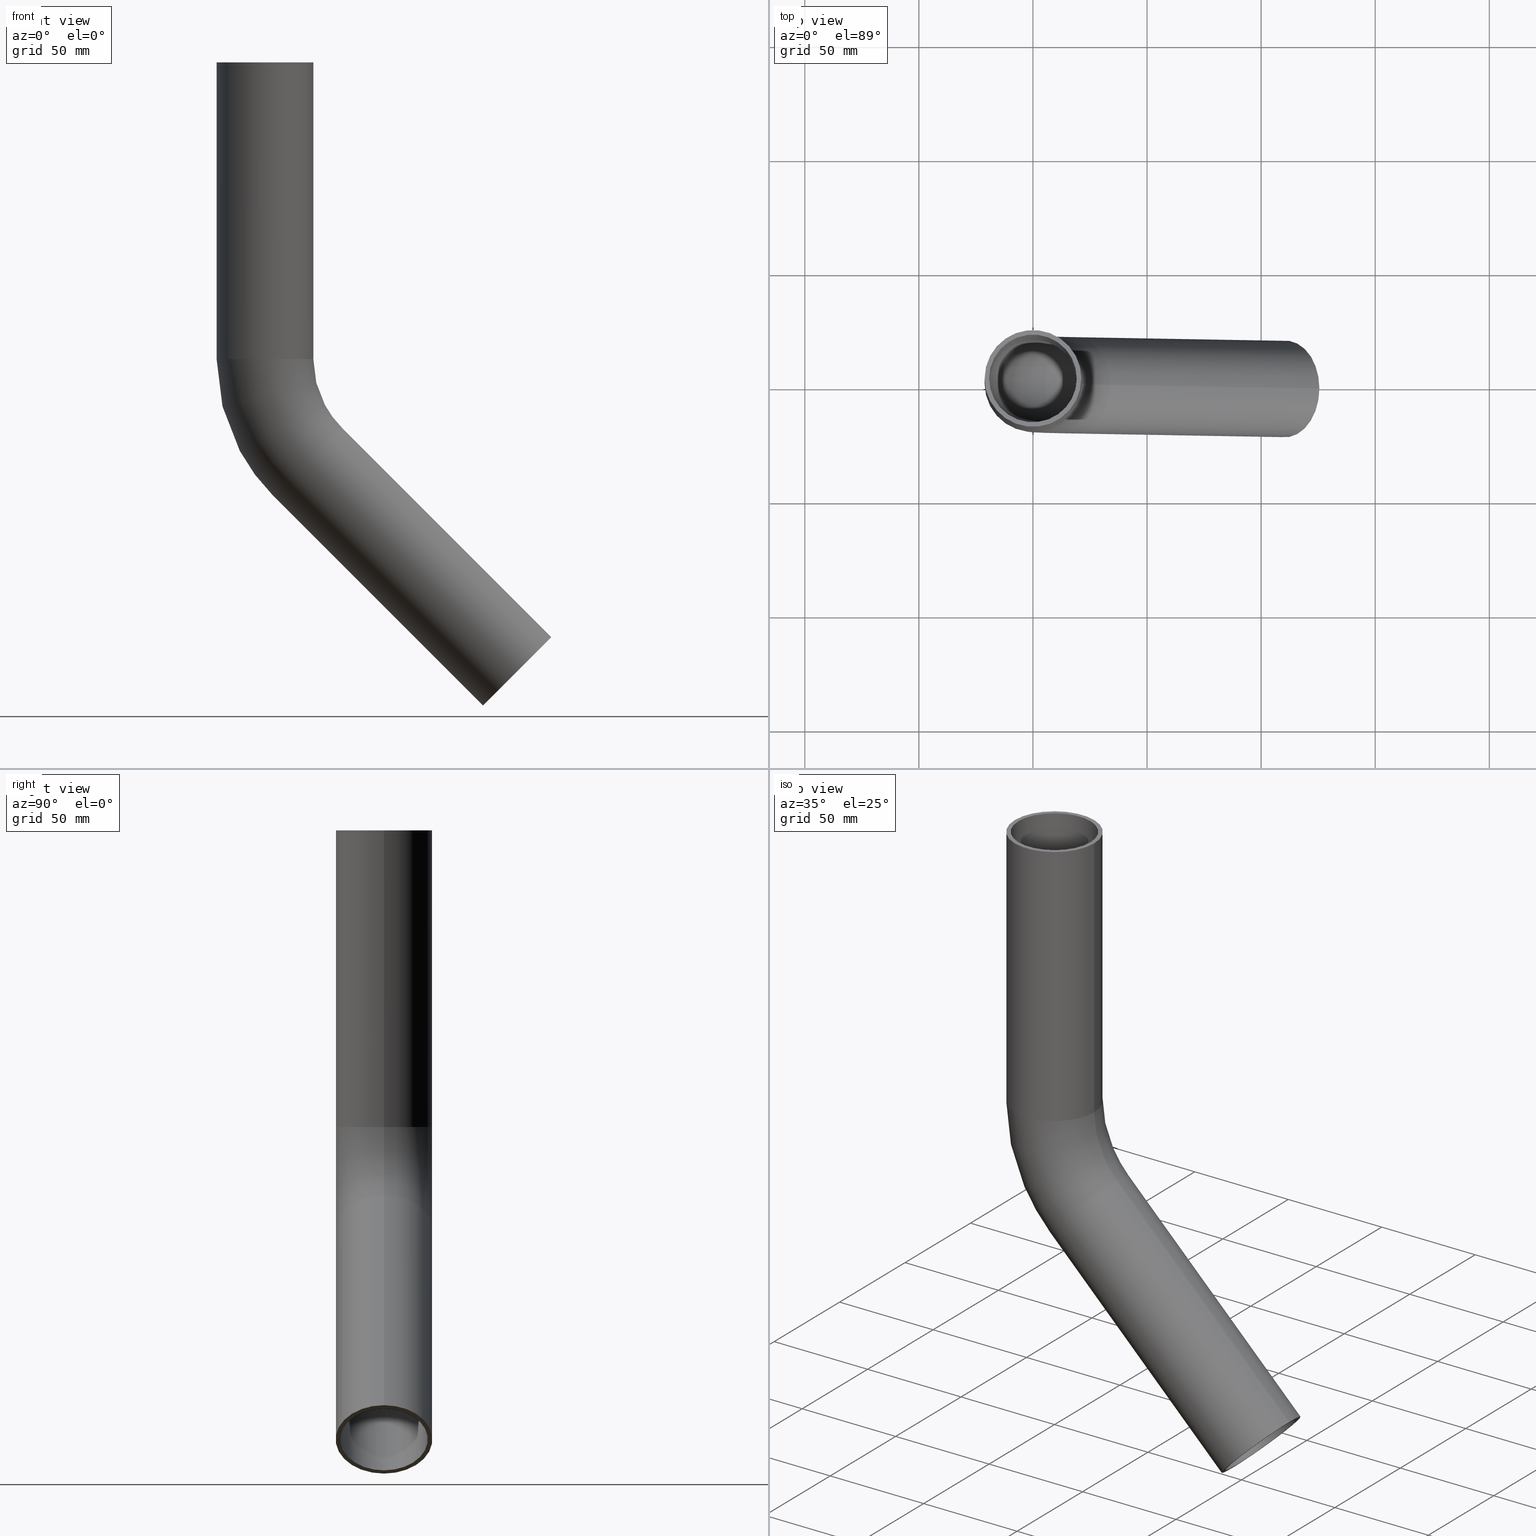
[diagram: canonical four-view strip — front | top / right | iso, engineering-drawing reading convention]
A machine part, canonical four-view strip (front | top / right | iso — engineering-drawing reading convention). The complete STEP part file that produces these views, byte-faithful:
ISO-10303-21;
HEADER;
FILE_DESCRIPTION(('STEP AP214'),
    '1');
FILE_NAME('758',
    '2014-11-14T13:16:58',
    ('Windows User'),
    (''),
    'ASCON STEP Converter 1.3',
    'ASCON Math Kernel',
    '');
FILE_SCHEMA(('AUTOMOTIVE_DESIGN { 1 0 10303 214 3 1 1}'));
ENDSEC;

DATA;
#1=SHAPE_REPRESENTATION('NONE',(#2),#6);
#2=AXIS2_PLACEMENT_3D('',#3,#4,#5);
#3=CARTESIAN_POINT('',(0.,0.,0.));
#4=DIRECTION('',(0.,0.,1.));
#5=DIRECTION('',(1.,0.,0.));
#6=(GEOMETRIC_REPRESENTATION_CONTEXT(3)GLOBAL_UNCERTAINTY_ASSIGNED_CONTEXT((#8))
GLOBAL_UNIT_ASSIGNED_CONTEXT((#7,#9,#10))REPRESENTATION_CONTEXT('NONE','NONE'));
#7=(LENGTH_UNIT()NAMED_UNIT(*)SI_UNIT(.MILLI.,.METRE.));
#8=UNCERTAINTY_MEASURE_WITH_UNIT(LENGTH_MEASURE(1.E-005),#7,'NONE','NONE');
#9=(NAMED_UNIT(*)PLANE_ANGLE_UNIT()SI_UNIT($,.RADIAN.));
#10=(NAMED_UNIT(*)SI_UNIT($,.STERADIAN.)SOLID_ANGLE_UNIT());
#11=SHAPE_DEFINITION_REPRESENTATION(#12,#1);
#12=PRODUCT_DEFINITION_SHAPE('NONE','NONE',#13);
#13=PRODUCT_DEFINITION('','UNSPECIFIED',#14,#22);
#14=PRODUCT_DEFINITION_FORMATION_WITH_SPECIFIED_SOURCE('ANY','UNSPECIFIED',#15,.NOT_KNOWN.);
#15=PRODUCT('','������','NONE',(#25));
#16=PERSON('UNSPECIFIED','Windows User','UNSPECIFIED',('UNSPECIFIED'),('UNSPECIFIED'),
('UNSPECIFIED'));
#17=ORGANIZATION('UNSPECIFIED','UNSPECIFIED','UNSPECIFIED');
#18=PERSON_AND_ORGANIZATION(#16,#17);
#19=PERSON_AND_ORGANIZATION_ROLE('design_owner');
#20=CC_DESIGN_PERSON_AND_ORGANIZATION_ASSIGNMENT(#18,#19,(#15));
#21=PRODUCT_RELATED_PRODUCT_CATEGORY('detail','',(#15));
#22=DESIGN_CONTEXT('detailed design',#23,'design');
#23=APPLICATION_CONTEXT('configuration controlled 3d designs of mechanical parts and assemblies');
#24=APPLICATION_PROTOCOL_DEFINITION('international standard','automotive_design',
2011,#23);
#25=MECHANICAL_CONTEXT('NONE',#23,'mechanical');
#26=CC_DESIGN_DATE_AND_TIME_ASSIGNMENT(#27,#31,(#13));
#27=DATE_AND_TIME(#28,#29);
#28=CALENDAR_DATE(0,1,1);
#29=LOCAL_TIME(0,0,0.,#30);
#30=COORDINATED_UNIVERSAL_TIME_OFFSET(0,0,.AHEAD.);
#31=DATE_TIME_ROLE('creation_date');
#32=CC_DESIGN_APPROVAL(#33,(#13));
#33=APPROVAL(#34,'UNSPECIFIED');
#34=APPROVAL_STATUS('not_yet_approved');
#35=APPROVAL_DATE_TIME(#36,#33);
#36=DATE_AND_TIME(#37,#38);
#37=CALENDAR_DATE(0,1,1);
#38=LOCAL_TIME(0,0,0.,#39);
#39=COORDINATED_UNIVERSAL_TIME_OFFSET(0,0,.AHEAD.);
#40=DERIVED_UNIT((#44,#41));
#41=DERIVED_UNIT_ELEMENT(#42,-1.);
#42=VOLUME_UNIT(#43);
#43=DIMENSIONAL_EXPONENTS(3.,0.,0.,0.,0.,0.,0.);
#44=(NAMED_UNIT($)MASS_UNIT()SI_UNIT($,.GRAM.));
#45=MANIFOLD_SOLID_BREP('',#46);
#46=CLOSED_SHELL('',(#58,#67,#76,#85,#94,#103,#112,#121));
#47=COLOUR_RGB($,0.564705882352941,0.564705882352941,0.564705882352941);
#48=FILL_AREA_STYLE_COLOUR($,#47);
#49=FILL_AREA_STYLE($,(#48));
#50=SURFACE_STYLE_FILL_AREA(#49);
#51=SURFACE_SIDE_STYLE('',(#50));
#52=SURFACE_STYLE_USAGE(.BOTH.,#51);
#53=PRESENTATION_STYLE_ASSIGNMENT((#52));
#54=MECHANICAL_DESIGN_GEOMETRIC_PRESENTATION_REPRESENTATION('NONE',(#55,#66,#75,
#84,#93,#102,#111,#120,#129),#6);
#55=STYLED_ITEM('',(#53),#45);
#56=ADVANCED_BREP_SHAPE_REPRESENTATION('NONE',(#45),#6);
#57=SHAPE_REPRESENTATION_RELATIONSHIP('','',#1,#56);
#58=ADVANCED_FACE('',(#130,#132),#134,.F.);
#59=COLOUR_RGB($,0.564705882352941,0.564705882352941,0.564705882352941);
#60=FILL_AREA_STYLE_COLOUR($,#59);
#61=FILL_AREA_STYLE($,(#60));
#62=SURFACE_STYLE_FILL_AREA(#61);
#63=SURFACE_SIDE_STYLE('',(#62));
#64=SURFACE_STYLE_USAGE(.BOTH.,#63);
#65=PRESENTATION_STYLE_ASSIGNMENT((#64));
#66=STYLED_ITEM('',(#65),#58);
#67=ADVANCED_FACE('',(#139,#141),#143,.F.);
#68=COLOUR_RGB($,0.564705882352941,0.564705882352941,0.564705882352941);
#69=FILL_AREA_STYLE_COLOUR($,#68);
#70=FILL_AREA_STYLE($,(#69));
#71=SURFACE_STYLE_FILL_AREA(#70);
#72=SURFACE_SIDE_STYLE('',(#71));
#73=SURFACE_STYLE_USAGE(.BOTH.,#72);
#74=PRESENTATION_STYLE_ASSIGNMENT((#73));
#75=STYLED_ITEM('',(#74),#67);
#76=ADVANCED_FACE('',(#148,#150),#152,.F.);
#77=COLOUR_RGB($,0.564705882352941,0.564705882352941,0.564705882352941);
#78=FILL_AREA_STYLE_COLOUR($,#77);
#79=FILL_AREA_STYLE($,(#78));
#80=SURFACE_STYLE_FILL_AREA(#79);
#81=SURFACE_SIDE_STYLE('',(#80));
#82=SURFACE_STYLE_USAGE(.BOTH.,#81);
#83=PRESENTATION_STYLE_ASSIGNMENT((#82));
#84=STYLED_ITEM('',(#83),#76);
#85=ADVANCED_FACE('',(#157,#159),#161,.T.);
#86=COLOUR_RGB($,0.564705882352941,0.564705882352941,0.564705882352941);
#87=FILL_AREA_STYLE_COLOUR($,#86);
#88=FILL_AREA_STYLE($,(#87));
#89=SURFACE_STYLE_FILL_AREA(#88);
#90=SURFACE_SIDE_STYLE('',(#89));
#91=SURFACE_STYLE_USAGE(.BOTH.,#90);
#92=PRESENTATION_STYLE_ASSIGNMENT((#91));
#93=STYLED_ITEM('',(#92),#85);
#94=ADVANCED_FACE('',(#166,#168),#170,.F.);
#95=COLOUR_RGB($,0.564705882352941,0.564705882352941,0.564705882352941);
#96=FILL_AREA_STYLE_COLOUR($,#95);
#97=FILL_AREA_STYLE($,(#96));
#98=SURFACE_STYLE_FILL_AREA(#97);
#99=SURFACE_SIDE_STYLE('',(#98));
#100=SURFACE_STYLE_USAGE(.BOTH.,#99);
#101=PRESENTATION_STYLE_ASSIGNMENT((#100));
#102=STYLED_ITEM('',(#101),#94);
#103=ADVANCED_FACE('',(#175,#177),#179,.T.);
#104=COLOUR_RGB($,0.564705882352941,0.564705882352941,0.564705882352941);
#105=FILL_AREA_STYLE_COLOUR($,#104);
#106=FILL_AREA_STYLE($,(#105));
#107=SURFACE_STYLE_FILL_AREA(#106);
#108=SURFACE_SIDE_STYLE('',(#107));
#109=SURFACE_STYLE_USAGE(.BOTH.,#108);
#110=PRESENTATION_STYLE_ASSIGNMENT((#109));
#111=STYLED_ITEM('',(#110),#103);
#112=ADVANCED_FACE('',(#184,#186),#188,.T.);
#113=COLOUR_RGB($,0.564705882352941,0.564705882352941,0.564705882352941);
#114=FILL_AREA_STYLE_COLOUR($,#113);
#115=FILL_AREA_STYLE($,(#114));
#116=SURFACE_STYLE_FILL_AREA(#115);
#117=SURFACE_SIDE_STYLE('',(#116));
#118=SURFACE_STYLE_USAGE(.BOTH.,#117);
#119=PRESENTATION_STYLE_ASSIGNMENT((#118));
#120=STYLED_ITEM('',(#119),#112);
#121=ADVANCED_FACE('',(#193,#195),#197,.T.);
#122=COLOUR_RGB($,0.564705882352941,0.564705882352941,0.564705882352941);
#123=FILL_AREA_STYLE_COLOUR($,#122);
#124=FILL_AREA_STYLE($,(#123));
#125=SURFACE_STYLE_FILL_AREA(#124);
#126=SURFACE_SIDE_STYLE('',(#125));
#127=SURFACE_STYLE_USAGE(.BOTH.,#126);
#128=PRESENTATION_STYLE_ASSIGNMENT((#127));
#129=STYLED_ITEM('',(#128),#121);
#130=FACE_OUTER_BOUND('',#131,.T.);
#131=EDGE_LOOP('',(#202));
#132=FACE_OUTER_BOUND('',#133,.T.);
#133=EDGE_LOOP('',(#203));
#134=CYLINDRICAL_SURFACE('',#135,19.2);
#135=AXIS2_PLACEMENT_3D('',#136,#137,#138);
#136=CARTESIAN_POINT('',(0.,0.,0.));
#137=DIRECTION('',(0.,0.,-1.));
#138=DIRECTION('',(1.,0.,0.));
#139=FACE_OUTER_BOUND('',#140,.T.);
#140=EDGE_LOOP('',(#204));
#141=FACE_OUTER_BOUND('',#142,.T.);
#142=EDGE_LOOP('',(#205));
#143=TOROIDAL_SURFACE('',#144,63.6,19.2);
#144=AXIS2_PLACEMENT_3D('',#145,#146,#147);
#145=CARTESIAN_POINT('',(63.6,0.,-130.));
#146=DIRECTION('',(0.,-1.,-0.));
#147=DIRECTION('',(-1.,0.,8.93764447496981E-016));
#148=FACE_OUTER_BOUND('',#149,.T.);
#149=EDGE_LOOP('',(#206));
#150=FACE_OUTER_BOUND('',#151,.T.);
#151=EDGE_LOOP('',(#207));
#152=CYLINDRICAL_SURFACE('',#153,19.2);
#153=AXIS2_PLACEMENT_3D('',#154,#155,#156);
#154=CARTESIAN_POINT('',(18.6280087165355,0.,-174.971991283464));
#155=DIRECTION('',(0.707106781186548,0.,-0.707106781186547));
#156=DIRECTION('',(0.707106781186547,0.,0.707106781186548));
#157=FACE_BOUND('',#158,.T.);
#158=EDGE_LOOP('',(#208));
#159=FACE_BOUND('',#160,.T.);
#160=EDGE_LOOP('',(#209));
#161=PLANE('',#162);
#162=AXIS2_PLACEMENT_3D('',#163,#164,#165);
#163=CARTESIAN_POINT('',(110.551890270787,0.,-266.895872837716));
#164=DIRECTION('',(0.707106781186547,0.,-0.707106781186548));
#165=DIRECTION('',(0.707106781186548,0.,0.707106781186547));
#166=FACE_BOUND('',#167,.T.);
#167=EDGE_LOOP('',(#210));
#168=FACE_BOUND('',#169,.T.);
#169=EDGE_LOOP('',(#211));
#170=PLANE('',#171);
#171=AXIS2_PLACEMENT_3D('',#172,#173,#174);
#172=CARTESIAN_POINT('',(0.,0.,0.));
#173=DIRECTION('',(0.,0.,-1.));
#174=DIRECTION('',(1.,0.,0.));
#175=FACE_OUTER_BOUND('',#176,.T.);
#176=EDGE_LOOP('',(#212));
#177=FACE_OUTER_BOUND('',#178,.T.);
#178=EDGE_LOOP('',(#213));
#179=CYLINDRICAL_SURFACE('',#180,21.2);
#180=AXIS2_PLACEMENT_3D('',#181,#182,#183);
#181=CARTESIAN_POINT('',(18.6280087165355,0.,-174.971991283464));
#182=DIRECTION('',(0.707106781186548,0.,-0.707106781186547));
#183=DIRECTION('',(0.707106781186547,0.,0.707106781186548));
#184=FACE_OUTER_BOUND('',#185,.T.);
#185=EDGE_LOOP('',(#214));
#186=FACE_OUTER_BOUND('',#187,.T.);
#187=EDGE_LOOP('',(#215));
#188=CYLINDRICAL_SURFACE('',#189,21.2);
#189=AXIS2_PLACEMENT_3D('',#190,#191,#192);
#190=CARTESIAN_POINT('',(0.,0.,0.));
#191=DIRECTION('',(0.,0.,-1.));
#192=DIRECTION('',(1.,0.,0.));
#193=FACE_OUTER_BOUND('',#194,.T.);
#194=EDGE_LOOP('',(#216));
#195=FACE_OUTER_BOUND('',#196,.T.);
#196=EDGE_LOOP('',(#217));
#197=TOROIDAL_SURFACE('',#198,63.6,21.2);
#198=AXIS2_PLACEMENT_3D('',#199,#200,#201);
#199=CARTESIAN_POINT('',(63.6,0.,-130.));
#200=DIRECTION('',(0.,-1.,-0.));
#201=DIRECTION('',(-1.,0.,8.93764447496981E-016));
#202=ORIENTED_EDGE('',*,*,#218,.F.);
#203=ORIENTED_EDGE('',*,*,#219,.T.);
#204=ORIENTED_EDGE('',*,*,#220,.T.);
#205=ORIENTED_EDGE('',*,*,#219,.F.);
#206=ORIENTED_EDGE('',*,*,#221,.T.);
#207=ORIENTED_EDGE('',*,*,#220,.F.);
#208=ORIENTED_EDGE('',*,*,#222,.T.);
#209=ORIENTED_EDGE('',*,*,#221,.F.);
#210=ORIENTED_EDGE('',*,*,#223,.F.);
#211=ORIENTED_EDGE('',*,*,#218,.T.);
#212=ORIENTED_EDGE('',*,*,#222,.F.);
#213=ORIENTED_EDGE('',*,*,#224,.T.);
#214=ORIENTED_EDGE('',*,*,#223,.T.);
#215=ORIENTED_EDGE('',*,*,#225,.F.);
#216=ORIENTED_EDGE('',*,*,#224,.F.);
#217=ORIENTED_EDGE('',*,*,#225,.T.);
#218=EDGE_CURVE('',#226,#226,#227,.T.);
#219=EDGE_CURVE('',#228,#228,#229,.T.);
#220=EDGE_CURVE('',#230,#230,#231,.T.);
#221=EDGE_CURVE('',#232,#232,#233,.T.);
#222=EDGE_CURVE('',#234,#234,#235,.T.);
#223=EDGE_CURVE('',#236,#236,#237,.T.);
#224=EDGE_CURVE('',#238,#238,#239,.T.);
#225=EDGE_CURVE('',#240,#240,#241,.T.);
#226=VERTEX_POINT('',#242);
#227=CIRCLE('',#243,19.2);
#228=VERTEX_POINT('',#247);
#229=CIRCLE('',#248,19.2);
#230=VERTEX_POINT('',#252);
#231=CIRCLE('',#253,19.2);
#232=VERTEX_POINT('',#257);
#233=CIRCLE('',#258,19.2000000000001);
#234=VERTEX_POINT('',#262);
#235=CIRCLE('',#263,21.2);
#236=VERTEX_POINT('',#267);
#237=CIRCLE('',#268,21.2);
#238=VERTEX_POINT('',#272);
#239=CIRCLE('',#273,21.2);
#240=VERTEX_POINT('',#277);
#241=CIRCLE('',#278,21.2);
#242=CARTESIAN_POINT('',(19.2,0.,0.));
#243=AXIS2_PLACEMENT_3D('',#244,#245,#246);
#244=CARTESIAN_POINT('',(0.,0.,0.));
#245=DIRECTION('',(0.,0.,-1.));
#246=DIRECTION('',(1.,0.,0.));
#247=CARTESIAN_POINT('',(19.2,4.70264370872584E-015,-130.));
#248=AXIS2_PLACEMENT_3D('',#249,#250,#251);
#249=CARTESIAN_POINT('',(0.,0.,-130.));
#250=DIRECTION('',(-8.93764447496981E-016,-0.,-1.));
#251=DIRECTION('',(1.,-1.22464679914735E-016,-8.93764447496981E-016));
#252=CARTESIAN_POINT('',(32.2044589153172,2.35132185436292E-015,-161.395541084683));
#253=AXIS2_PLACEMENT_3D('',#254,#255,#256);
#254=CARTESIAN_POINT('',(18.6280087165355,0.,-174.971991283464));
#255=DIRECTION('',(0.707106781186548,0.,-0.707106781186547));
#256=DIRECTION('',(0.707106781186547,0.,0.707106781186548));
#257=CARTESIAN_POINT('',(124.128340469568,4.70264370872584E-015,-253.319422638934));
#258=AXIS2_PLACEMENT_3D('',#259,#260,#261);
#259=CARTESIAN_POINT('',(110.551890270787,0.,-266.895872837716));
#260=DIRECTION('',(0.707106781186547,0.,-0.707106781186548));
#261=DIRECTION('',(0.707106781186548,0.,0.707106781186547));
#262=CARTESIAN_POINT('',(125.542554031942,0.,-251.905209076561));
#263=AXIS2_PLACEMENT_3D('',#264,#265,#266);
#264=CARTESIAN_POINT('',(110.551890270787,0.,-266.895872837716));
#265=DIRECTION('',(0.707106781186547,0.,-0.707106781186548));
#266=DIRECTION('',(0.707106781186548,0.,0.707106781186547));
#267=CARTESIAN_POINT('',(21.2,0.,0.));
#268=AXIS2_PLACEMENT_3D('',#269,#270,#271);
#269=CARTESIAN_POINT('',(0.,0.,0.));
#270=DIRECTION('',(0.,0.,-1.));
#271=DIRECTION('',(1.,0.,0.));
#272=CARTESIAN_POINT('',(33.6186724776903,0.,-159.98132752231));
#273=AXIS2_PLACEMENT_3D('',#274,#275,#276);
#274=CARTESIAN_POINT('',(18.6280087165355,0.,-174.971991283464));
#275=DIRECTION('',(0.707106781186546,0.,-0.707106781186549));
#276=DIRECTION('',(0.707106781186549,-1.22464679914735E-016,0.707106781186546));
#277=CARTESIAN_POINT('',(21.2,-2.59625121419239E-015,-130.));
#278=AXIS2_PLACEMENT_3D('',#279,#280,#281);
#279=CARTESIAN_POINT('',(0.,0.,-130.));
#280=DIRECTION('',(0.,0.,-1.));
#281=DIRECTION('',(1.,0.,0.));
ENDSEC;
END-ISO-10303-21;
